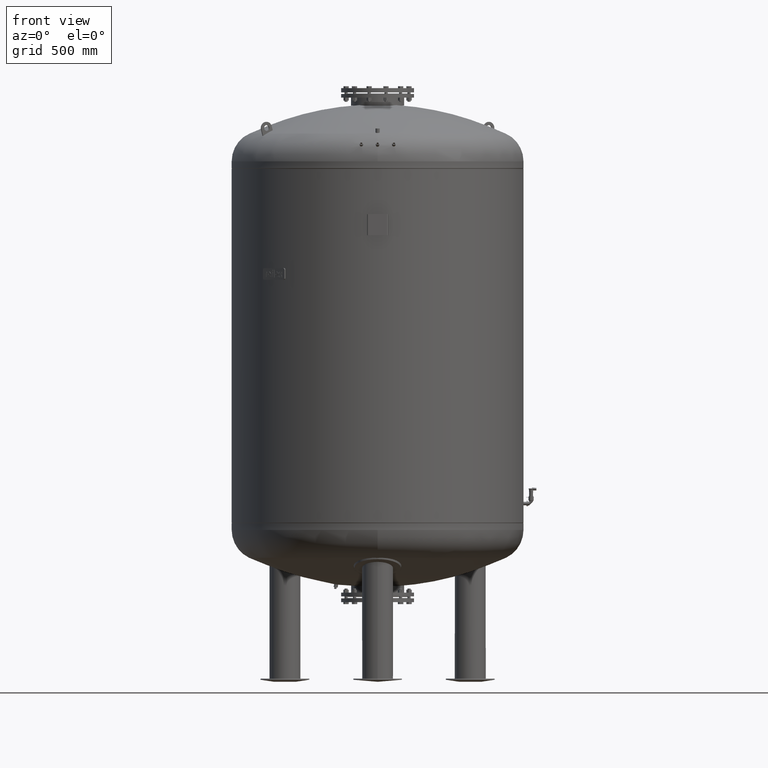
[diagram: clean part render]
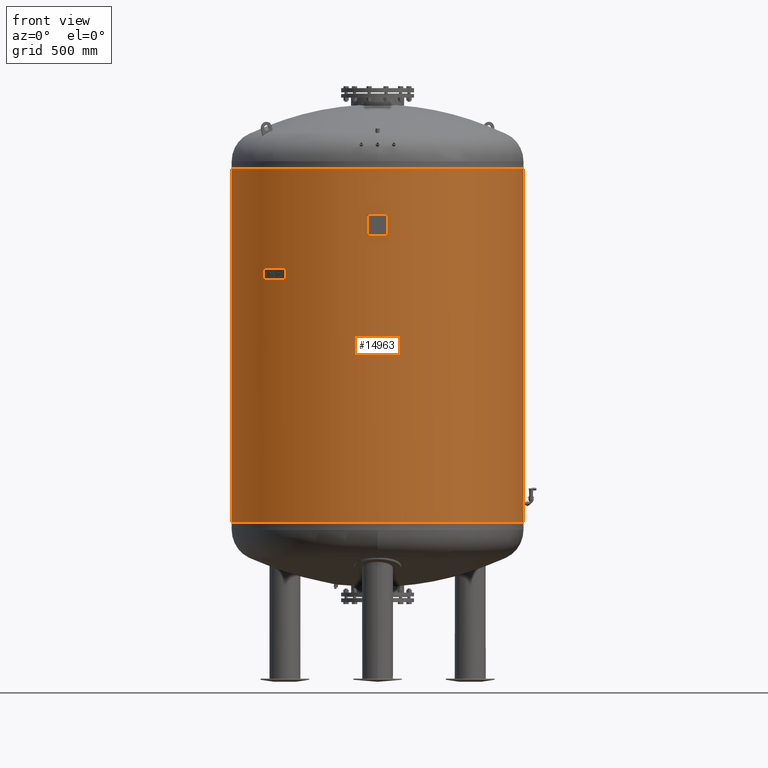
[diagram: same view with one face highlighted and labeled with its STEP entity id]
A machine part, front view. The second image highlights one B-rep face of the part: STEP entity #14963.
In plain terms, the highlighted cylindrical surface (partial cylindrical patch) has radius 750 mm, axis along (0, 0, 1).
Its self-contained STEP definition (entity closure, byte-faithful):
#14922=CARTESIAN_POINT('',(8.316550E-015,0.0,2186.250000000000000));
#14923=DIRECTION('',(1.828818E-017,0.0,1.0));
#14924=DIRECTION('',(1.0,0.0,0.0));
#14925=AXIS2_PLACEMENT_3D('',#14922,#14923,#14924);
#14926=CYLINDRICAL_SURFACE('',#14925,750.000000000000570);
#14927=CARTESIAN_POINT('',(750.000000000000910,0.0,2641.0));
#14928=VERTEX_POINT('',#14927);
#14929=CARTESIAN_POINT('',(749.999999999999890,0.0,822.0));
#14930=VERTEX_POINT('',#14929);
#14931=CARTESIAN_POINT('',(750.000000000000910,0.0,2641.0));
#14932=DIRECTION('',(0.0,0.0,-1.0));
#14933=VECTOR('',#14932,1819.0);
#14934=LINE('',#14931,#14933);
#14935=EDGE_CURVE('',#14928,#14930,#14934,.T.);
#14936=ORIENTED_EDGE('',*,*,#14935,.F.);
#14937=CARTESIAN_POINT('',(-750.000000000000570,-9.184548E-014,2641.0));
#14938=VERTEX_POINT('',#14937);
#14939=CARTESIAN_POINT('',(1.663310E-014,0.0,2641.0));
#14940=DIRECTION('',(0.0,0.0,1.0));
#14941=DIRECTION('',(1.0,0.0,0.0));
#14942=AXIS2_PLACEMENT_3D('',#14939,#14940,#14941);
#14943=CIRCLE('',#14942,750.000000000000910);
#14944=EDGE_CURVE('',#14938,#14928,#14943,.T.);
#14945=ORIENTED_EDGE('',*,*,#14944,.F.);
#14946=CARTESIAN_POINT('',(-749.999999999999890,-9.184548E-014,822.000000000000110));
#14947=VERTEX_POINT('',#14946);
#14948=CARTESIAN_POINT('',(-750.000000000000570,-9.184548E-014,2641.0));
#14949=DIRECTION('',(0.0,0.0,-1.0));
#14950=VECTOR('',#14949,1819.0);
#14951=LINE('',#14948,#14950);
#14952=EDGE_CURVE('',#14938,#14947,#14951,.T.);
#14953=ORIENTED_EDGE('',*,*,#14952,.T.);
#14954=CARTESIAN_POINT('',(-1.663310E-014,0.0,822.000000000000110));
#14955=DIRECTION('',(0.0,0.0,1.0));
#14956=DIRECTION('',(1.0,0.0,0.0));
#14957=AXIS2_PLACEMENT_3D('',#14954,#14955,#14956);
#14958=CIRCLE('',#14957,749.999999999999890);
#14959=EDGE_CURVE('',#14947,#14930,#14958,.T.);
#14960=ORIENTED_EDGE('',*,*,#14959,.T.);
#14961=EDGE_LOOP('',(#14936,#14945,#14953,#14960));
#14962=FACE_OUTER_BOUND('',#14961,.T.);
#14963=ADVANCED_FACE('',(#14962),#14926,.T.);